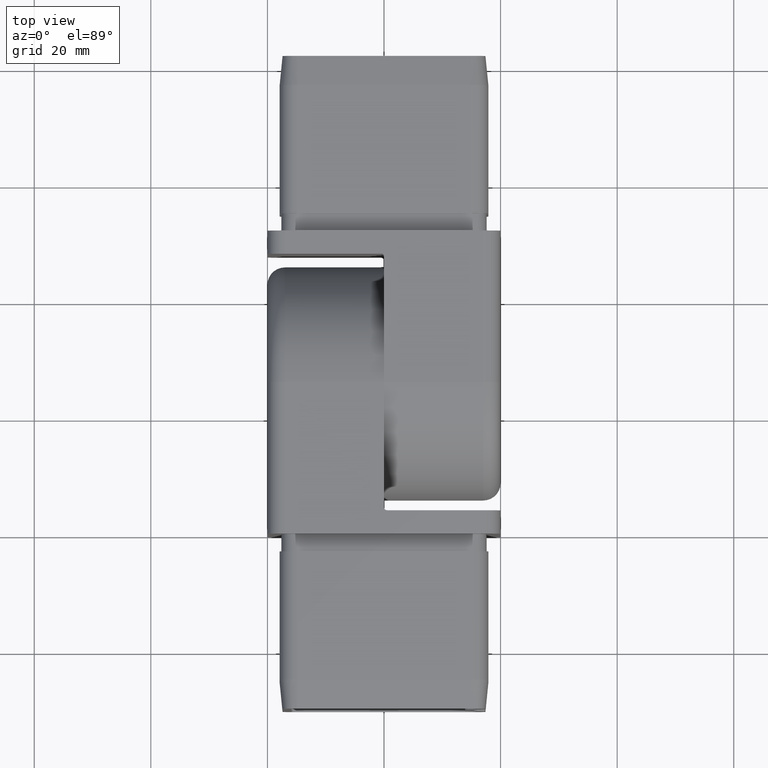
[diagram: clean part render]
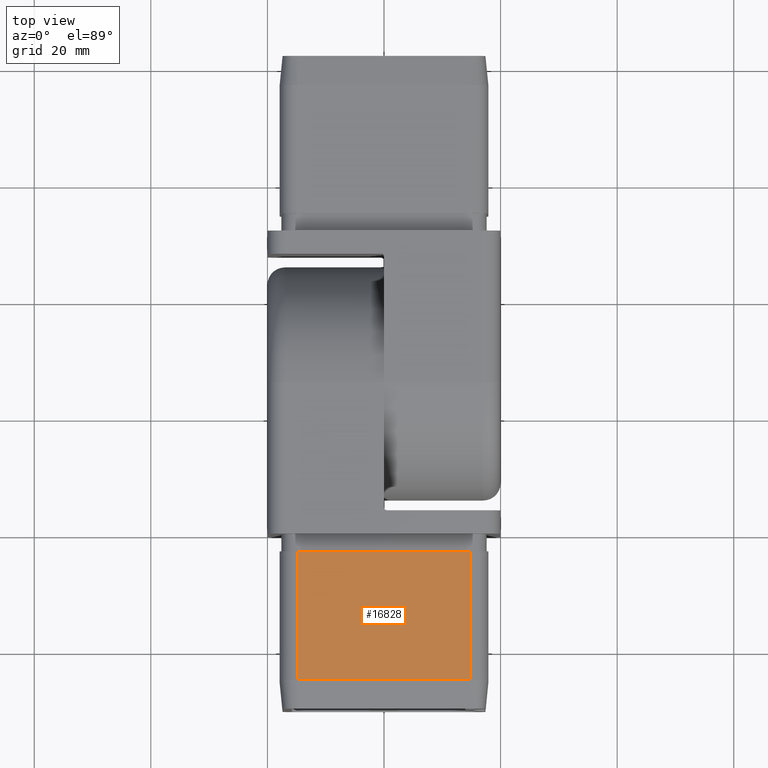
[diagram: same view with one face highlighted and labeled with its STEP entity id]
A machine part, top view. The second image highlights one B-rep face of the part: STEP entity #16828.
In plain terms, the highlighted planar face has unit normal (0, 0, -1).
Its self-contained STEP definition (entity closure, byte-faithful):
#966 = CARTESIAN_POINT ( 'NONE',  ( -14.89999999999999900, -3.000000000000000000, 17.89999999999999100 ) ) ;
#1483 = LINE ( 'NONE', #15661, #13116 ) ;
#3001 = VECTOR ( 'NONE', #12554, 1000.000000000000000 ) ;
#3793 = DIRECTION ( 'NONE',  ( 1.000000000000000000, 0.0000000000000000000, 1.164243943608595200E-016 ) ) ;
#4662 = VECTOR ( 'NONE', #13449, 1000.000000000000000 ) ;
#4916 = VERTEX_POINT ( 'NONE', #8313 ) ;
#5265 = CARTESIAN_POINT ( 'NONE',  ( -14.89999999999999900, -25.00000000000000000, 17.89999999999999100 ) ) ;
#5304 = LINE ( 'NONE', #14765, #4662 ) ;
#5516 = ORIENTED_EDGE ( 'NONE', *, *, #14895, .F. ) ;
#6217 = CARTESIAN_POINT ( 'NONE',  ( 14.90000000000000600, -25.00000000000000000, 17.89999999999999500 ) ) ;
#6721 = DIRECTION ( 'NONE',  ( 1.164243943608595200E-016, 0.0000000000000000000, -1.000000000000000000 ) ) ;
#7725 = ORIENTED_EDGE ( 'NONE', *, *, #11054, .T. ) ;
#7966 = CARTESIAN_POINT ( 'NONE',  ( -14.89999999999999900, -25.00000000000000000, 17.89999999999999100 ) ) ;
#8313 = CARTESIAN_POINT ( 'NONE',  ( 14.90000000000000600, -3.000000000000000000, 17.89999999999999500 ) ) ;
#9255 = AXIS2_PLACEMENT_3D ( 'NONE', #15345, #6721, #11160 ) ;
#9318 = ORIENTED_EDGE ( 'NONE', *, *, #16607, .T. ) ;
#9990 = EDGE_CURVE ( 'NONE', #14903, #4916, #13749, .T. ) ;
#10084 = VERTEX_POINT ( 'NONE', #5265 ) ;
#10992 = PLANE ( 'NONE',  #9255 ) ;
#11054 = EDGE_CURVE ( 'NONE', #12123, #4916, #1483, .T. ) ;
#11160 = DIRECTION ( 'NONE',  ( -1.000000000000000000, 0.0000000000000000000, -1.164243943608595200E-016 ) ) ;
#12123 = VERTEX_POINT ( 'NONE', #6217 ) ;
#12374 = CARTESIAN_POINT ( 'NONE',  ( -14.89999999999999900, -3.000000000000000000, 17.89999999999999100 ) ) ;
#12554 = DIRECTION ( 'NONE',  ( 1.000000000000000000, 0.0000000000000000000, 1.164243943608595200E-016 ) ) ;
#13116 = VECTOR ( 'NONE', #15783, 1000.000000000000000 ) ;
#13164 = FACE_OUTER_BOUND ( 'NONE', #15973, .T. ) ;
#13449 = DIRECTION ( 'NONE',  ( -0.0000000000000000000, 1.000000000000000000, -0.0000000000000000000 ) ) ;
#13749 = LINE ( 'NONE', #12374, #3001 ) ;
#14275 = LINE ( 'NONE', #7966, #17817 ) ;
#14765 = CARTESIAN_POINT ( 'NONE',  ( -14.89999999999999700, -30.00000000000000000, 17.89999999999999500 ) ) ;
#14895 = EDGE_CURVE ( 'NONE', #10084, #14903, #5304, .T. ) ;
#14903 = VERTEX_POINT ( 'NONE', #966 ) ;
#15345 = CARTESIAN_POINT ( 'NONE',  ( -2.083996659059384900E-015, -30.00000000000000000, 17.89999999999999500 ) ) ;
#15661 = CARTESIAN_POINT ( 'NONE',  ( 14.90000000000000700, -30.00000000000000000, 17.89999999999999900 ) ) ;
#15783 = DIRECTION ( 'NONE',  ( -0.0000000000000000000, 1.000000000000000000, -0.0000000000000000000 ) ) ;
#15973 = EDGE_LOOP ( 'NONE', ( #5516, #9318, #7725, #16329 ) ) ;
#16329 = ORIENTED_EDGE ( 'NONE', *, *, #9990, .F. ) ;
#16607 = EDGE_CURVE ( 'NONE', #10084, #12123, #14275, .T. ) ;
#16828 = ADVANCED_FACE ( 'NONE', ( #13164 ), #10992, .F. ) ;
#17817 = VECTOR ( 'NONE', #3793, 1000.000000000000000 ) ;